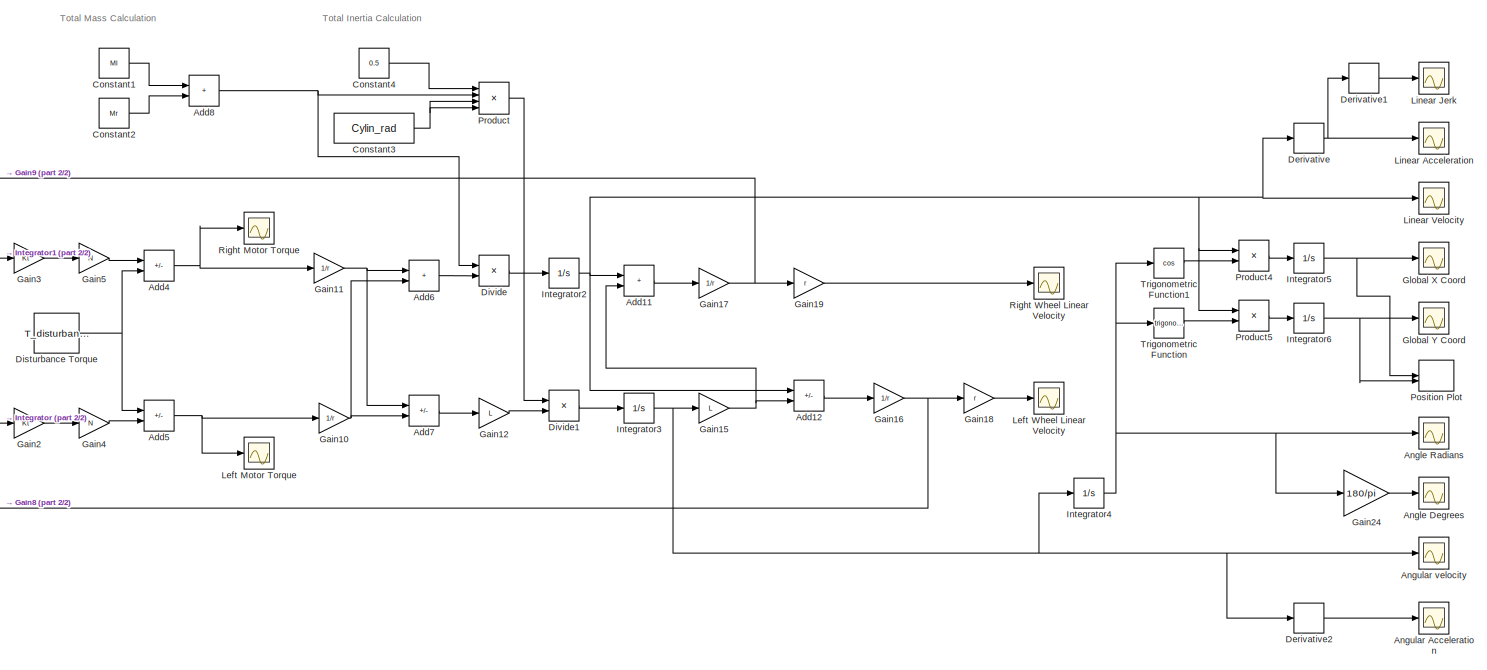
[diagram: root canvas - part 1/2, center side, full height]
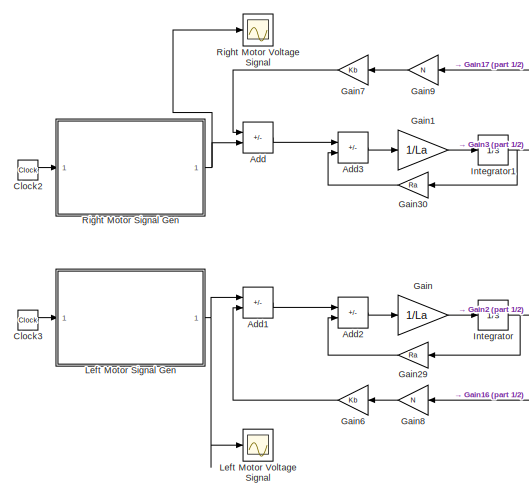
[diagram: root canvas - part 2/2, middle left region]
MODEL slx_2421e04d708c
KIND model
CONFIG AbsTol = auto
CONFIG EnableMultiTasking = off
CONFIG FixedStep = 0.0001
CONFIG MaxStep = auto
CONFIG MinStep = auto
CONFIG RelTol = 1e-3
CONFIG SampleTimeConstraint = Unconstrained
CONFIG SolverName = FixedStepAuto
CONFIG StartTime = 0.0
CONFIG StopTime = 25
WORKSPACE source: mxarray member
WORKSPACE Cylin_height = 1
WORKSPACE Cylin_rad = 0.25
WORKSPACE Kb = 0.103
WORKSPACE Kt = 0.103
WORKSPACE L = 0.25
WORKSPACE La = 0.00035
WORKSPACE Ml = 10
WORKSPACE Mr = 20
WORKSPACE N = 10
WORKSPACE Ra = 0.175
WORKSPACE T_disturbance = 0
WORKSPACE r = 0.05
BLOCK [Sum] Add
  IconShape = rectangular
  Inputs = -+
BLOCK [Sum] Add1
  IconShape = rectangular
  Inputs = +-
BLOCK [Sum] Add11
  IconShape = rectangular
BLOCK [Sum] Add12
  IconShape = rectangular
  Inputs = +-
BLOCK [Sum] Add2
  IconShape = rectangular
  Inputs = +-
BLOCK [Sum] Add3
  IconShape = rectangular
  Inputs = +-
BLOCK [Sum] Add4
  IconShape = rectangular
  Inputs = +-
BLOCK [Sum] Add5
  IconShape = rectangular
  Inputs = -+
BLOCK [Sum] Add6
  IconShape = rectangular
BLOCK [Sum] Add7
  IconShape = rectangular
  Inputs = +-
BLOCK [Sum] Add8
  IconShape = rectangular
BLOCK [Scope] Angle Degrees
  ActiveDisplayYMaximum = 20.353091284195184
  ActiveDisplayYMinimum = -183.17782155775669
  DataLoggingVariableName = ScopeData13
  Floating = off
  GraphicalSettings = {"AxesScalingProperties":{"AlignXAxis":"Center","AlignYAxis":"Center","AutoScaleXAxisLimits":false,"AxesScaling":"Manual","AxesScalingNumUpdates":10,"ExpandOnly":true,"ScaleAxesLimitsAtStop":false,"XAxisDataRange":100,"YAxisDataRange":80},"DisplayProperties":{"ColorOrder":["auto","auto","auto","auto","auto","auto","auto","auto","auto","auto","auto","auto","auto","auto","auto","auto","auto","auto",...<+2008ch>
  MultipleDisplayCache = [{"MaxYLimMag":183.17782155775669,"MaxYLimReal":20.353091284195184,"MinYLimMag":0,"MinYLimReal":-183.17782155775669,"PlotAsMagnitudePhase":false,"ShowGrid":true,"ShowLegend":false,"Title":"%<SignalLabel>","YLabel":""}]
  NumInputPorts = 1
  ScopeFrameLocation = window
  WasSavedAsWebScope = on
  WindowPosition = [866.000000,50.000000,862.000000,1002.000000,]
BLOCK [Scope] Angle Radians
  ActiveDisplayYMaximum = 1.0466514692895668
  ActiveDisplayYMinimum = -3.9652945050599886
  DataLoggingVariableName = ScopeData6
  Floating = off
  GraphicalSettings = {"Style":{"BackgroundColor":[0.12941176470588237,0.12941176470588237,0.12941176470588237],"AxesColor":[0.07058823529411765,0.07058823529411765,0.07058823529411765],"LabelsColor":[0.8509803921568627,0.8509803921568627,0.8509803921568627],"PreserveColors":false,"Visible":[true],"LineStyle":["-"],"LineWidth":[1.5],"BarWidth":[0.9],"LineColor":["auto"],"LineFaceAlpha":[1],"LineEdgeAlpha":[1],"Marker":...<+2009ch>  <repeated x3 — deduplicated; at blocks: Angle Radians, Angular Acceleration, Angular velocity>
  MultipleDisplayCache = [{"MaxYLimMag":3.5342917342462177,"MaxYLimReal":1.0466514692895668,"MinYLimMag":0,"MinYLimReal":-3.9652945050599886,"PlotAsMagnitudePhase":false,"ShowGrid":true,"ShowLegend":false,"Title":"%<SignalLabel>","YLabel":""}]
  NumInputPorts = 1
  ScopeFrameLocation = window
  WasSavedAsWebScope = on
  WindowPosition = [459.000000,380.000000,560.000000,420.000000,]
BLOCK [Scope] Angular Acceleration
  ActiveDisplayYMaximum = 188.15883571696298
  ActiveDisplayYMinimum = -185.16809509708176
  DataLoggingVariableName = ScopeData3
  Floating = off
  MultipleDisplayCache = [{"MaxYLimMag":188.15883571696298,"MaxYLimReal":188.15883571696298,"MinYLimMag":0,"MinYLimReal":-185.16809509708176,"PlotAsMagnitudePhase":false,"ShowGrid":true,"ShowLegend":false,"Title":"%<SignalLabel>","YLabel":""}]
  NumInputPorts = 1
  ScopeFrameLocation = window
  WasSavedAsWebScope = on
  WindowPosition = [829.000000,363.000000,560.000000,420.000000,]
BLOCK [Scope] Angular velocity
  ActiveDisplayYMaximum = 1.5459466005434646
  ActiveDisplayYMinimum = -4.3095503488796725
  ContainerLayout = {"WindowBounds":[322,95,1293,804],"gridDimensions":{"w":1,"h":1},"tileCount":1,"tileCoverage":1,"columnWeights":1,"rowWeights":1,"tileOccupancy":{}}
  Floating = off
  MultipleDisplayCache = [{"MaxYLimMag":1.1131532680186618,"MaxYLimReal":1.5459466005434646,"MinYLimMag":0,"MinYLimReal":-4.3095503488796725,"PlotAsMagnitudePhase":false,"ShowGrid":true,"ShowLegend":false,"Title":"%<SignalLabel>","YLabel":""}]
  NumInputPorts = 1
  ScopeFrameLocation = window
  WasSavedAsWebScope = on
  WindowPosition = [133.000000,104.000000,1280.000000,768.000000,]
BLOCK [Clock] Clock2
BLOCK [Clock] Clock3
BLOCK [Constant] Constant1
  Value = Ml
BLOCK [Constant] Constant2
  Value = Mr
BLOCK [Constant] Constant3
  Value = Cylin_rad
BLOCK [Constant] Constant4
  Value = 0.5
BLOCK [Derivative] Derivative
BLOCK [Derivative] Derivative1
BLOCK [Derivative] Derivative2
BLOCK [Constant] Disturbance Torque
  Value = T_disturbance
BLOCK [Product] Divide
  Inputs = /*
BLOCK [Product] Divide1
  Inputs = /*
BLOCK [Gain] Gain
  Gain = 1/La
BLOCK [Gain] Gain1
  Gain = 1/La
BLOCK [Gain] Gain10
  Gain = 1/r
BLOCK [Gain] Gain11
  Gain = 1/r
BLOCK [Gain] Gain12
  Gain = L
BLOCK [Gain] Gain15
  Gain = L
BLOCK [Gain] Gain16
  Gain = 1/r
BLOCK [Gain] Gain17
  Gain = 1/r
BLOCK [Gain] Gain18
  Gain = r
BLOCK [Gain] Gain19
  Gain = r
BLOCK [Gain] Gain2
  Gain = Kt
BLOCK [Gain] Gain24
  Gain = 180/pi
BLOCK [Gain] Gain29
  Gain = Ra
BLOCK [Gain] Gain3
  Gain = Kt
BLOCK [Gain] Gain30
  Gain = Ra
BLOCK [Gain] Gain4
  Gain = N
BLOCK [Gain] Gain5
  Gain = N
BLOCK [Gain] Gain6
  Gain = Kb
BLOCK [Gain] Gain7
  Gain = Kb
BLOCK [Gain] Gain8
  Gain = N
BLOCK [Gain] Gain9
  Gain = N
BLOCK [Scope] Global X Coord
  ActiveDisplayYMaximum = 16.841961551517873
  ActiveDisplayYMinimum = -1.8713290612797631
  ContainerLayout = {"WindowBounds":[322,95,1293,804],"gridDimensions":{"w":1,"h":1},"tileCount":1,"tileCoverage":1,"columnWeights":1,"rowWeights":1,"tileOccupancy":{}}
  DataLoggingVariableName = ScopeData4
  Floating = off
  GraphicalSettings = {"AxesScalingProperties":{"AlignXAxis":"Center","AlignYAxis":"Center","AutoScaleXAxisLimits":false,"AxesScaling":"Manual","AxesScalingNumUpdates":10,"ExpandOnly":true,"ScaleAxesLimitsAtStop":false,"XAxisDataRange":100,"YAxisDataRange":80},"DisplayProperties":{"ColorOrder":["auto","auto","auto","auto","auto","auto","auto","auto","auto","auto","auto","auto","auto","auto","auto","auto","auto","auto",...<+2016ch>
  MultipleDisplayCache = [{"MaxYLimMag":16.841961551517873,"MaxYLimReal":16.841961551517873,"MinYLimMag":0,"MinYLimReal":-1.8713290612797631,"PlotAsMagnitudePhase":false,"ShowGrid":true,"ShowLegend":false,"Title":"%<SignalLabel>","YLabel":""}]
  NumInputPorts = 1
  ScopeFrameLocation = window
  WasSavedAsWebScope = on
  WindowPosition = [204.000000,161.000000,1280.000000,768.000000,]
BLOCK [Scope] Global Y Coord
  ActiveDisplayYMaximum = 3.0144323426500579
  ActiveDisplayYMinimum = -8.33934006713714
  ContainerLayout = {"WindowBounds":[322,95,1293,804],"gridDimensions":{"w":1,"h":1},"tileCount":1,"tileCoverage":1,"columnWeights":1,"rowWeights":1,"tileOccupancy":{}}
  DataLoggingVariableName = ScopeData5
  Floating = off
  GraphicalSettings = {"Style":{"BackgroundColor":[0.12941176470588237,0.12941176470588237,0.12941176470588237],"AxesColor":[0.07058823529411765,0.07058823529411765,0.07058823529411765],"LabelsColor":[0.8509803921568627,0.8509803921568627,0.8509803921568627],"PreserveColors":false,"Visible":[true],"LineStyle":["-"],"LineWidth":[1.5],"BarWidth":[0.9],"LineColor":["auto"],"LineFaceAlpha":[1],"LineEdgeAlpha":[1],"Marker":...<+2001ch>
  MultipleDisplayCache = [{"MaxYLimMag":5.175936861506818,"MaxYLimReal":3.0144323426500579,"MinYLimMag":0,"MinYLimReal":-8.33934006713714,"PlotAsMagnitudePhase":false,"ShowGrid":true,"ShowLegend":false,"Title":"%<SignalLabel>","YLabel":""}]
  NumInputPorts = 1
  ScopeFrameLocation = window
  WasSavedAsWebScope = on
  WindowPosition = [217.000000,177.000000,1280.000000,768.000000,]
BLOCK [Integrator] Integrator
BLOCK [Integrator] Integrator1
BLOCK [Integrator] Integrator2
BLOCK [Integrator] Integrator3
BLOCK [Integrator] Integrator4
BLOCK [Integrator] Integrator5
BLOCK [Integrator] Integrator6
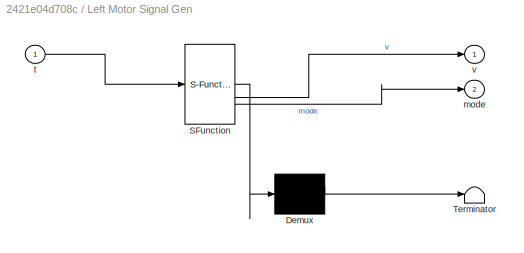
BLOCK [SubSystem] Left Motor Signal Gen
  ErrorFcn = Stateflow.Translate.translate
  PermitHierarchicalResolution = ExplicitOnly
  SFBlockType = MATLAB Function
  TreatAsAtomicUnit = on
BLOCK [Demux] Left Motor Signal Gen/ Demux 
  Outputs = 1
BLOCK [S-Function] Left Motor Signal Gen/ SFunction 
  EnableBusSupport = off
  FunctionName = sf_sfun
  PortCounts = [1 3]
  SFcnIsStateOwnerBlock = off
  SFunctionDeploymentMode = off
  Tag = Stateflow S-Function 4
BLOCK [Terminator] Left Motor Signal Gen/ Terminator 
BLOCK [Outport] Left Motor Signal Gen/mode
  Port = 2
BLOCK [Inport] Left Motor Signal Gen/t
BLOCK [Outport] Left Motor Signal Gen/v
BLOCK [Scope] Left Motor Torque
  ActiveDisplayYMaximum = 8.8627431367451486
  ActiveDisplayYMinimum = -25.98206815391725
  DataLoggingVariableName = ScopeData8
  Floating = off
  GraphicalSettings = {"Style":{"BackgroundColor":[0.12941176470588237,0.12941176470588237,0.12941176470588237],"AxesColor":[0.07058823529411765,0.07058823529411765,0.07058823529411765],"LabelsColor":[0.8509803921568627,0.8509803921568627,0.8509803921568627],"PreserveColors":false,"Visible":[true],"LineStyle":["-"],"LineWidth":[1.5],"BarWidth":[0.9],"LineColor":["auto"],"LineFaceAlpha":[1],"LineEdgeAlpha":[1],"Marker":...<+2017ch>  <repeated x3 — deduplicated; at blocks: Left Motor Torque, Right Motor Torque, Right Motor Voltage Signal>
  MultipleDisplayCache = [{"MaxYLimMag":24.605039231446209,"MaxYLimReal":8.8627431367451486,"MinYLimMag":0,"MinYLimReal":-25.98206815391725,"PlotAsMagnitudePhase":false,"ShowGrid":true,"ShowLegend":false,"Title":"%<SignalLabel>","YLabel":""}]  <repeated x3 — deduplicated; at blocks: Left Motor Torque, Right Motor Torque, Right Motor Voltage Signal>
  NumInputPorts = 1
  ScopeFrameLocation = window
  WasSavedAsWebScope = on
  WindowPosition = [488.000000,222.000000,560.000000,420.000000,]
BLOCK [Scope] Left Motor Voltage Signal
  ActiveDisplayYMaximum = 54.343731704096328
  ActiveDisplayYMinimum = -19.039828580117813
  ContainerLayout = {"WindowBounds":[322,95,1293,804],"gridDimensions":{"w":1,"h":1},"tileCount":1,"tileCoverage":1,"columnWeights":1,"rowWeights":1,"tileOccupancy":{}}
  DataLoggingVariableName = ScopeData7
  Floating = off
  GraphicalSettings = {"AxesScalingProperties":{"AlignXAxis":"Center","AlignYAxis":"Center","AutoScaleXAxisLimits":false,"AxesScaling":"Manual","AxesScalingNumUpdates":10,"ExpandOnly":true,"ScaleAxesLimitsAtStop":false,"XAxisDataRange":100,"YAxisDataRange":80},"DisplayProperties":{"ColorOrder":["auto","auto","auto","auto","auto","auto","auto","auto","auto","auto","auto","auto","auto","auto","auto","auto","auto","auto",...<+2042ch>
  MultipleDisplayCache = [{"MaxYLimMag":23.318355582524266,"MaxYLimReal":54.343731704096328,"MinYLimMag":0,"MinYLimReal":-19.039828580117813,"PlotAsMagnitudePhase":false,"ShowGrid":true,"ShowLegend":false,"Title":"%<SignalLabel>","YLabel":""}]
  NumInputPorts = 1
  ScopeFrameLocation = window
  WasSavedAsWebScope = on
  WindowPosition = [307.000000,148.000000,923.000000,568.000000,]
BLOCK [Scope] Left Wheel Linear Velocity
  ActiveDisplayYMaximum = 18.678208631985495
  ActiveDisplayYMinimum = -5.48691577769321
  ContainerLayout = {"WindowBounds":[322,95,1293,804],"gridDimensions":{"w":1,"h":1},"tileCount":1,"tileCoverage":1,"columnWeights":1,"rowWeights":1,"tileOccupancy":{}}
  DataLoggingVariableName = ScopeData3
  Floating = off
  GraphicalSettings = {"AxesScalingProperties":{"AlignXAxis":"Center","AlignYAxis":"Center","AutoScaleXAxisLimits":false,"AxesScaling":"Manual","AxesScalingNumUpdates":10,"ExpandOnly":true,"ScaleAxesLimitsAtStop":false,"XAxisDataRange":100,"YAxisDataRange":80},"DisplayProperties":{"ColorOrder":["auto","auto","auto","auto","auto","auto","auto","auto","auto","auto","auto","auto","auto","auto","auto","auto","auto","auto",...<+2006ch>
  MultipleDisplayCache = [{"MaxYLimMag":46.136848536754741,"MaxYLimReal":18.678208631985495,"MinYLimMag":0,"MinYLimReal":-5.48691577769321,"PlotAsMagnitudePhase":false,"ShowGrid":true,"ShowLegend":false,"Title":"%<SignalLabel>","YLabel":""}]
  NumInputPorts = 1
  ScopeFrameLocation = window
  WasSavedAsWebScope = on
  WindowPosition = [128.000000,48.000000,1280.000000,768.000000,]
BLOCK [Scope] Linear Acceleration
  ActiveDisplayYMaximum = 1.2172624102344556
  ActiveDisplayYMinimum = -1.2172626426571826
  DataLoggingVariableName = ScopeData1
  Floating = off
  GraphicalSettings = {"Style":{"BackgroundColor":[0.12941176470588237,0.12941176470588237,0.12941176470588237],"AxesColor":[0.07058823529411765,0.07058823529411765,0.07058823529411765],"LabelsColor":[0.8509803921568627,0.8509803921568627,0.8509803921568627],"PreserveColors":false,"Visible":[true],"LineStyle":["-"],"LineWidth":[1.5],"BarWidth":[0.9],"LineColor":["auto"],"LineFaceAlpha":[1],"LineEdgeAlpha":[1],"Marker":...<+2007ch>
  MultipleDisplayCache = [{"MaxYLimMag":1.2172626426571826,"MaxYLimReal":1.2172624102344556,"MinYLimMag":0,"MinYLimReal":-1.2172626426571826,"PlotAsMagnitudePhase":false,"ShowGrid":true,"ShowLegend":false,"Title":"%<SignalLabel>","YLabel":""}]
  NumInputPorts = 1
  ScopeFrameLocation = window
  WasSavedAsWebScope = on
  WindowPosition = [331.000000,150.000000,875.000000,565.000000,]
BLOCK [Scope] Linear Jerk
  ActiveDisplayYMaximum = 179.18044144253787
  ActiveDisplayYMinimum = -152.64062064121811
  DataLoggingVariableName = ScopeData2
  Floating = off
  GraphicalSettings = {"AxesScalingProperties":{"AlignXAxis":"Center","AlignYAxis":"Center","AutoScaleXAxisLimits":false,"AxesScaling":"Manual","AxesScalingNumUpdates":10,"ExpandOnly":true,"ScaleAxesLimitsAtStop":false,"XAxisDataRange":100,"YAxisDataRange":80},"DisplayProperties":{"ColorOrder":["auto","auto","auto","auto","auto","auto","auto","auto","auto","auto","auto","auto","auto","auto","auto","auto","auto","auto",...<+2014ch>
  MultipleDisplayCache = [{"MaxYLimMag":2.0571208751903174,"MaxYLimReal":179.18044144253787,"MinYLimMag":0,"MinYLimReal":-152.64062064121811,"PlotAsMagnitudePhase":false,"ShowGrid":true,"ShowLegend":false,"Title":"%<SignalLabel>","YLabel":""}]
  NumInputPorts = 1
  ScopeFrameLocation = window
  WasSavedAsWebScope = on
  WindowPosition = [560.000000,346.000000,560.000000,420.000000,]
BLOCK [Scope] Linear Velocity
  ActiveDisplayYMaximum = 2.3211727579306629
  ActiveDisplayYMinimum = -0.48867140311363633
  ContainerLayout = {"WindowBounds":[322,95,1293,804],"gridDimensions":{"w":1,"h":1},"tileCount":1,"tileCoverage":1,"columnWeights":1,"rowWeights":1,"tileOccupancy":{}}
  DataLoggingVariableName = ScopeData1
  Floating = off
  GraphicalSettings = {"AxesScalingProperties":{"AlignXAxis":"Center","AlignYAxis":"Center","AutoScaleXAxisLimits":false,"AxesScaling":"Manual","AxesScalingNumUpdates":10,"ExpandOnly":true,"ScaleAxesLimitsAtStop":false,"XAxisDataRange":100,"YAxisDataRange":80},"DisplayProperties":{"ColorOrder":["auto","auto","auto","auto","auto","auto","auto","auto","auto","auto","auto","auto","auto","auto","auto","auto","auto","auto",...<+2018ch>
  MultipleDisplayCache = [{"MaxYLimMag":2.1844983031248946,"MaxYLimReal":2.3211727579306629,"MinYLimMag":0,"MinYLimReal":-0.48867140311363633,"PlotAsMagnitudePhase":false,"ShowGrid":true,"ShowLegend":false,"Title":"%<SignalLabel>","YLabel":""}]
  NumInputPorts = 1
  ScopeFrameLocation = window
  WasSavedAsWebScope = on
  WindowPosition = [128.000000,48.000000,1280.000000,768.000000,]
BLOCK [Record] Position Plot
  CompatibilityTag = XY
  FileSettingsInternal = {"entries":[{"content":{"excelSettings":{"content":{},"type":"Streamout.ExcelSettings"},"parquetSettings":{"content":{},"type":"Streamout.ParquetSettings"}},"type":"Streamout.FileSettingStorage","uuid":""}],"packageUris":["http:\/\/schema.mathworks.com\/mf0\/streamout_blocks\/R2020a"],"version":"1.0"}
  FrameSettings = [0, 0]
  Layout = [1 1]
  NumPorts = 2.0
  SignalsInternal = {"entries":[{"content":{"signals":[{"content":{"blockPath":[],"dimensions":[1],"domain":"","lineColor":"#a2142f","plots":[ 1 ],"port":1,"sid":[""],"signalID":1,"signalName":"Integrator5"},"type":"RecordBlkView.Signal","uuid":""},{"content":{"blockPath":[],"dimensions":[1],"domain":"","lineColor":"#139fff","plots":[ 1 ],"port":2,"sid":[""],"signalID":2,"signalName":"Integrator6"},"type":"RecordBlkV...<+168ch>
  VisualizationBindings = {"xyplotplugin":{"info":[{"series":[{"bindingParametersList":[{"parameter":"X-Axis","signalID":1,"signalName":"Integrator5"},{"parameter":"Y-Axis","signalID":2,"signalName":"Integrator6"}],"seriesID":0}],"subplotID":1}]}}
BLOCK [Product] Product
  Inputs = 4
BLOCK [Product] Product4
BLOCK [Product] Product5
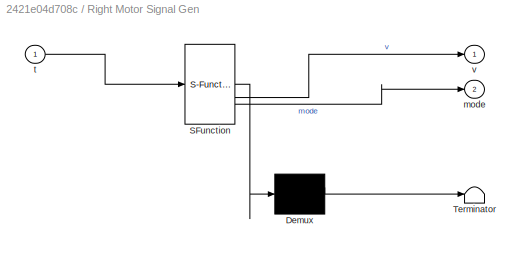
BLOCK [SubSystem] Right Motor Signal Gen
  ErrorFcn = Stateflow.Translate.translate
  PermitHierarchicalResolution = ExplicitOnly
  SFBlockType = MATLAB Function
  TreatAsAtomicUnit = on
BLOCK [Demux] Right Motor Signal Gen/ Demux 
  Outputs = 1
BLOCK [S-Function] Right Motor Signal Gen/ SFunction 
  EnableBusSupport = off
  FunctionName = sf_sfun
  PortCounts = [1 3]
  SFcnIsStateOwnerBlock = off
  SFunctionDeploymentMode = off
  Tag = Stateflow S-Function 3
BLOCK [Terminator] Right Motor Signal Gen/ Terminator 
BLOCK [Outport] Right Motor Signal Gen/mode
  Port = 2
BLOCK [Inport] Right Motor Signal Gen/t
BLOCK [Outport] Right Motor Signal Gen/v
BLOCK [Scope] Right Motor Torque
  ActiveDisplayYMaximum = 8.8627431367451486
  ActiveDisplayYMinimum = -25.98206815391725
  DataLoggingVariableName = ScopeData10
  Floating = off
  NumInputPorts = 1
  ScopeFrameLocation = window
  WasSavedAsWebScope = on
  WindowPosition = [688.000000,399.000000,560.000000,420.000000,]
BLOCK [Scope] Right Motor Voltage Signal
  ActiveDisplayYMaximum = 8.8627431367451486
  ActiveDisplayYMinimum = -25.98206815391725
  DataLoggingVariableName = ScopeData9
  Floating = off
  NumInputPorts = 1
  ScopeFrameLocation = window
  WasSavedAsWebScope = on
  WindowPosition = [688.000000,399.000000,560.000000,420.000000,]
BLOCK [Scope] Right Wheel Linear Velocity
  ActiveDisplayYMaximum = 42.6074131001411
  ActiveDisplayYMinimum = -4.7341570111267881
  ContainerLayout = {"WindowBounds":[322,95,1293,804],"gridDimensions":{"w":1,"h":1},"tileCount":1,"tileCoverage":1,"columnWeights":1,"rowWeights":1,"tileOccupancy":{}}
  DataLoggingVariableName = ScopeData2
  Floating = off
  GraphicalSettings = {"Style":{"BackgroundColor":[0.12941176470588237,0.12941176470588237,0.12941176470588237],"AxesColor":[0.07058823529411765,0.07058823529411765,0.07058823529411765],"LabelsColor":[0.8509803921568627,0.8509803921568627,0.8509803921568627],"PreserveColors":false,"Visible":[true],"LineStyle":["-"],"LineWidth":[1.5],"BarWidth":[0.9],"LineColor":["auto"],"LineFaceAlpha":[1],"LineEdgeAlpha":[1],"Marker":...<+1989ch>
  MultipleDisplayCache = [{"MaxYLimMag":42.6074131001411,"MaxYLimReal":42.6074131001411,"MinYLimMag":0,"MinYLimReal":-4.7341570111267881,"PlotAsMagnitudePhase":false,"ShowGrid":true,"ShowLegend":false,"Title":"%<SignalLabel>","YLabel":""}]
  NumInputPorts = 1
  ScopeFrameLocation = window
  WasSavedAsWebScope = on
  WindowPosition = [302.000000,100.000000,1280.000000,768.000000,]
BLOCK [Trigonometry] Trigonometric Function
BLOCK [Trigonometry] Trigonometric Function1
  Operator = cos
ANNOTATION (root): Total Inertia Calculation
ANNOTATION (root): Total Mass Calculation
LINE Add11:1 -> Gain17:1
LINE Add12:1 -> Gain16:1
LINE Add1:1 -> Add2:1
LINE Add2:1 -> Gain:1
LINE Add3:1 -> Gain1:1
NET Add4:1 -> Gain11:1, Right Motor Torque:1
NET Add5:1 -> Gain10:1, Left Motor Torque:1
LINE Add6:1 -> Divide:2
LINE Add7:1 -> Gain12:1
NET Add8:1 -> Divide:1, Product:2
LINE Add:1 -> Add3:1
LINE Clock2:1 -> Right Motor Signal Gen:1
LINE Clock3:1 -> Left Motor Signal Gen:1
LINE Constant1:1 -> Add8:1
LINE Constant2:1 -> Add8:2
NET Constant3:1 -> Product:3, Product:4
LINE Constant4:1 -> Product:1
LINE Derivative1:1 -> Linear Jerk:1
LINE Derivative2:1 -> Angular Acceleration:1
NET Derivative:1 -> Derivative1:1, Linear Acceleration:1
NET Disturbance Torque:1 -> Add4:2, Add5:1
LINE Divide1:1 -> Integrator3:1
LINE Divide:1 -> Integrator2:1
NET Gain10:1 -> Add6:2, Add7:2
NET Gain11:1 -> Add6:1, Add7:1
LINE Gain12:1 -> Divide1:2
NET Gain15:1 -> Add11:2, Add12:2
NET Gain16:1 -> Gain18:1, Gain8:1
NET Gain17:1 -> Gain19:1, Gain9:1
LINE Gain18:1 -> Left Wheel Linear Velocity:1
LINE Gain19:1 -> Right Wheel Linear Velocity:1
LINE Gain1:1 -> Integrator1:1
LINE Gain24:1 -> Angle Degrees:1
LINE Gain29:1 -> Add2:2
LINE Gain2:1 -> Gain4:1
LINE Gain30:1 -> Add3:2
LINE Gain3:1 -> Gain5:1
LINE Gain4:1 -> Add5:2
LINE Gain5:1 -> Add4:1
LINE Gain6:1 -> Add1:2
LINE Gain7:1 -> Add:1
LINE Gain8:1 -> Gain6:1
LINE Gain9:1 -> Gain7:1
LINE Gain:1 -> Integrator:1
NET Integrator1:1 -> Gain30:1, Gain3:1
NET Integrator2:1 -> Add11:1, Add12:1, Derivative:1, Linear Velocity:1, Product4:1, Product5:1
NET Integrator3:1 -> Angular velocity:1, Derivative2:1, Gain15:1, Integrator4:1
NET Integrator4:1 -> Angle Radians:1, Gain24:1, Trigonometric Function1:1, Trigonometric Function:1
NET Integrator5:1 -> Global X Coord:1, Position Plot:1
NET Integrator6:1 -> Global Y Coord:1, Position Plot:2
NET Integrator:1 -> Gain29:1, Gain2:1
NET Left Motor Signal Gen:1 -> Add1:1, Left Motor Voltage Signal:1
LINE Product4:1 -> Integrator5:1
LINE Product5:1 -> Integrator6:1
LINE Product:1 -> Divide1:1
NET Right Motor Signal Gen:1 -> Add:2, Right Motor Voltage Signal:1
LINE Trigonometric Function1:1 -> Product4:2
LINE Trigonometric Function:1 -> Product5:2
note: NET lines group one-source signal fan-out (src -> all destinations, sorted); 1:1 wires keep LINE
CHART Left Motor Signal Gen states=1 transitions=1
  STATE_LABEL 'eML_blk_kernel()'
  STATE_LABEL 'SCRIPT:\nfunction [v, mode] = desired_voltage_signal_gen(t)\n% Trapezoidal voltage profile generator\n\n% ---- PARAMETERS ----\nVmax_list = [40, 40, 40, 40, 40]; % Peak voltages\nSmax_list = [20, 40, 20, 40, 20]; % Voltage slew rate (V/s)\nT_list    = [9.7325, 0.8995, 7.15787, 0.8995, 6.128]; % Total durations of each segment\nsign_list = [1, 1, 1, 1, 1]; % +1 = forward voltage, -1 = reverse\nmode_list = [...<+1195ch>'
CHART Right Motor Signal Gen states=1 transitions=1
  STATE_LABEL 'eML_blk_kernel()'
  STATE_LABEL 'SCRIPT:\nfunction [v, mode] = desired_voltage_signal_gen(t)\n% Trapezoidal voltage profile generator\n\n% ---- PARAMETERS ----\nVmax_list = [40, 40, 40, 40, 40]; % Peak voltages\nSmax_list = [20, 40, 20, 40, 20]; % Voltage slew rate (V/s)\nT_list    = [9.7325, 0.8995, 7.15787, 0.8995, 6.128]; % Total durations of each segment\nsign_list = [1, -1, 1, -1, 1]; % +1 = forward voltage, -1 = reverse\nmode_list =...<+1197ch>'
CHART  states=0 transitions=0
CHART  states=0 transitions=0
